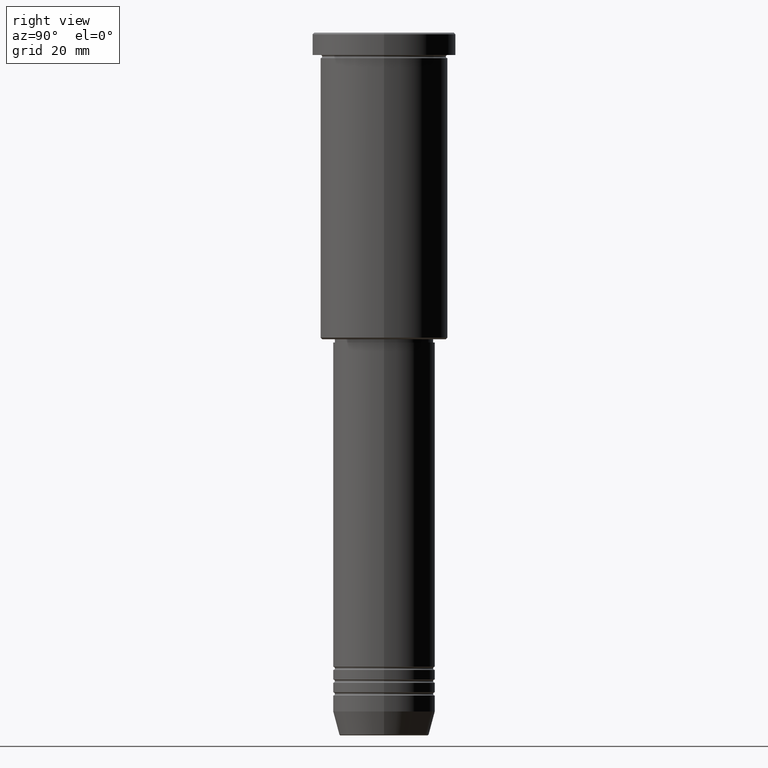
[diagram: clean part render]
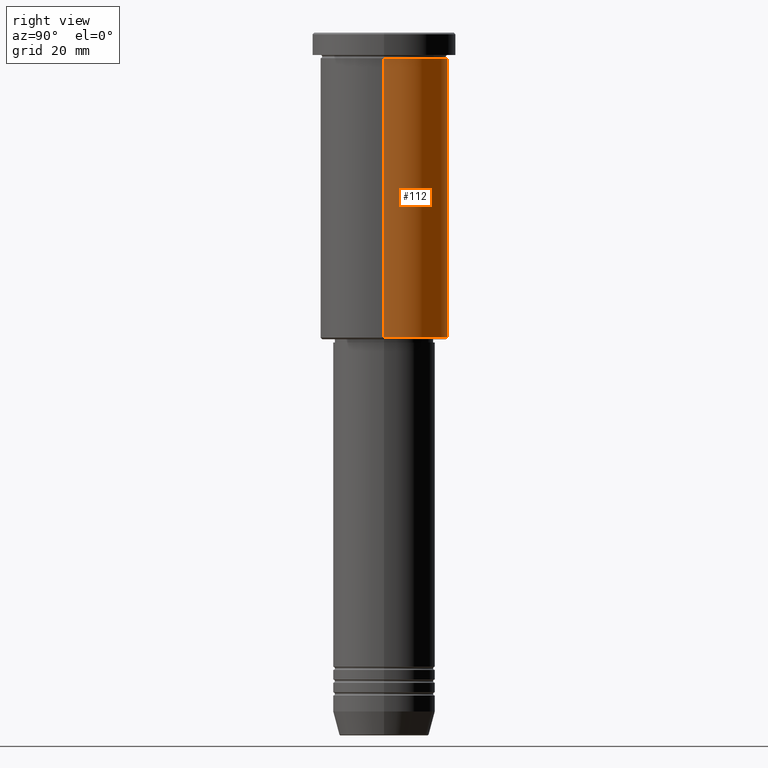
[diagram: same view with one face highlighted and labeled with its STEP entity id]
A machine part, right view. The second image highlights one B-rep face of the part: STEP entity #112.
In plain terms, the highlighted cylindrical surface (partial cylindrical patch) has radius 20 mm, axis along (-0, -0, 1).
Its self-contained STEP definition (entity closure, byte-faithful):
#33 = VECTOR ( 'NONE', #602, 1000.000000000000000 ) ;
#57 = CARTESIAN_POINT ( 'NONE',  ( 0.000000000000000000, 0.000000000000000000, 0.000000000000000000 ) ) ;
#63 = FACE_OUTER_BOUND ( 'NONE', #635, .T. ) ;
#112 = ADVANCED_FACE ( 'NONE', ( #63 ), #778, .T. ) ;
#157 = VERTEX_POINT ( 'NONE', #1050 ) ;
#214 = CIRCLE ( 'NONE', #251, 20.00000000000000355 ) ;
#232 = CARTESIAN_POINT ( 'NONE',  ( 20.00000000000000355, 0.000000000000000000, 0.000000000000000000 ) ) ;
#251 = AXIS2_PLACEMENT_3D ( 'NONE', #941, #410, #1131 ) ;
#270 = VERTEX_POINT ( 'NONE', #813 ) ;
#348 = VERTEX_POINT ( 'NONE', #919 ) ;
#364 = ORIENTED_EDGE ( 'NONE', *, *, #945, .T. ) ;
#401 = VECTOR ( 'NONE', #953, 1000.000000000000000 ) ;
#410 = DIRECTION ( 'NONE',  ( -0.000000000000000000, -0.000000000000000000, 1.000000000000000000 ) ) ;
#416 = ORIENTED_EDGE ( 'NONE', *, *, #868, .T. ) ;
#436 = CIRCLE ( 'NONE', #820, 20.00000000000000000 ) ;
#438 = CARTESIAN_POINT ( 'NONE',  ( 0.000000000000000000, 0.000000000000000000, -7.999999999999994671 ) ) ;
#478 = VERTEX_POINT ( 'NONE', #487 ) ;
#487 = CARTESIAN_POINT ( 'NONE',  ( 20.00000000000000000, 0.000000000000000000, -7.999999999999994671 ) ) ;
#507 = DIRECTION ( 'NONE',  ( 1.000000000000000000, 0.000000000000000000, 0.000000000000000000 ) ) ;
#602 = DIRECTION ( 'NONE',  ( -0.000000000000000000, -0.000000000000000000, 1.000000000000000000 ) ) ;
#605 = ORIENTED_EDGE ( 'NONE', *, *, #641, .F. ) ;
#635 = EDGE_LOOP ( 'NONE', ( #364, #416, #654, #605 ) ) ;
#641 = EDGE_CURVE ( 'NONE', #157, #478, #1042, .T. ) ;
#654 = ORIENTED_EDGE ( 'NONE', *, *, #689, .F. ) ;
#655 = DIRECTION ( 'NONE',  ( 1.000000000000000000, 0.000000000000000000, 0.000000000000000000 ) ) ;
#668 = CARTESIAN_POINT ( 'NONE',  ( -20.00000000000000355, 2.449293598294706907E-15, 0.000000000000000000 ) ) ;
#689 = EDGE_CURVE ( 'NONE', #478, #348, #436, .T. ) ;
#699 = DIRECTION ( 'NONE',  ( -0.000000000000000000, -0.000000000000000000, 1.000000000000000000 ) ) ;
#719 = AXIS2_PLACEMENT_3D ( 'NONE', #57, #699, #507 ) ;
#765 = LINE ( 'NONE', #668, #401 ) ;
#778 = CYLINDRICAL_SURFACE ( 'NONE', #719, 20.00000000000000355 ) ;
#813 = CARTESIAN_POINT ( 'NONE',  ( -20.00000000000000355, 2.449293598294706907E-15, -95.49999999999997158 ) ) ;
#820 = AXIS2_PLACEMENT_3D ( 'NONE', #438, #1078, #655 ) ;
#868 = EDGE_CURVE ( 'NONE', #270, #348, #765, .T. ) ;
#919 = CARTESIAN_POINT ( 'NONE',  ( -20.00000000000000000, 2.449293598294706513E-15, -7.999999999999994671 ) ) ;
#941 = CARTESIAN_POINT ( 'NONE',  ( 0.000000000000000000, 0.000000000000000000, -95.49999999999997158 ) ) ;
#945 = EDGE_CURVE ( 'NONE', #157, #270, #214, .T. ) ;
#953 = DIRECTION ( 'NONE',  ( -0.000000000000000000, -0.000000000000000000, 1.000000000000000000 ) ) ;
#1042 = LINE ( 'NONE', #232, #33 ) ;
#1050 = CARTESIAN_POINT ( 'NONE',  ( 20.00000000000000355, 0.000000000000000000, -95.49999999999997158 ) ) ;
#1078 = DIRECTION ( 'NONE',  ( -0.000000000000000000, -0.000000000000000000, 1.000000000000000000 ) ) ;
#1131 = DIRECTION ( 'NONE',  ( -1.000000000000000000, 0.000000000000000000, 0.000000000000000000 ) ) ;